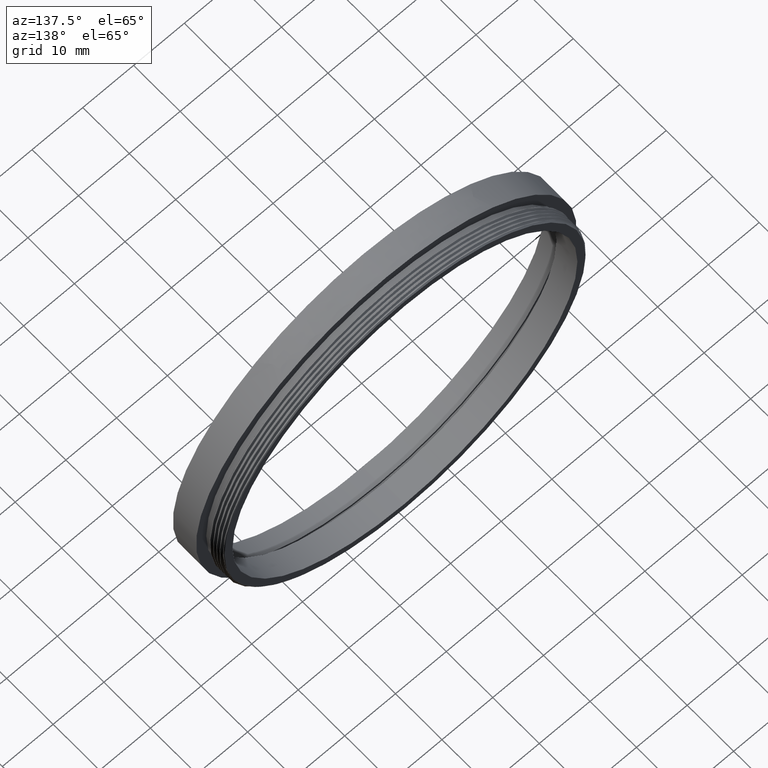
[diagram: clean part render]
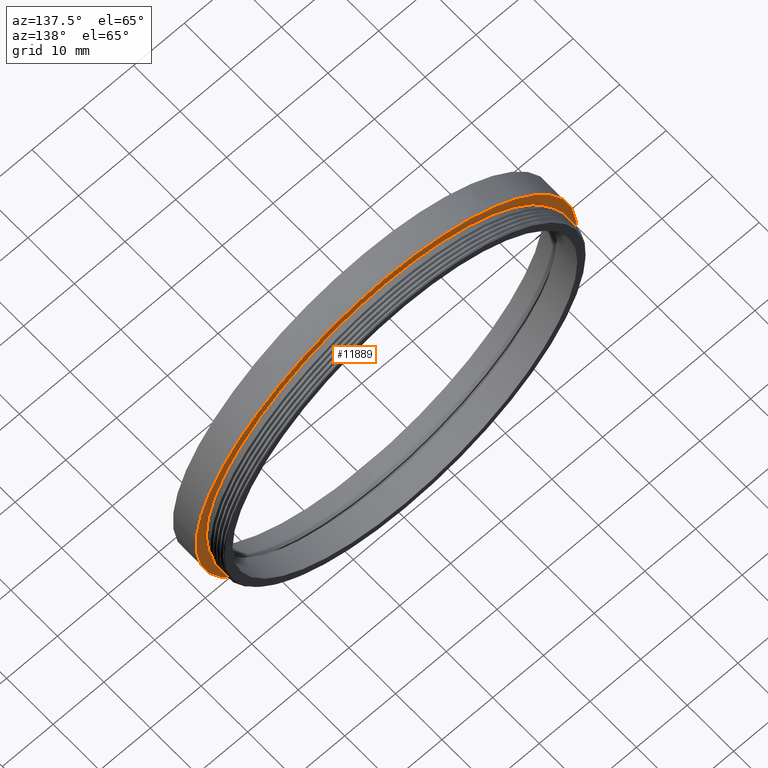
[diagram: same view with one face highlighted and labeled with its STEP entity id]
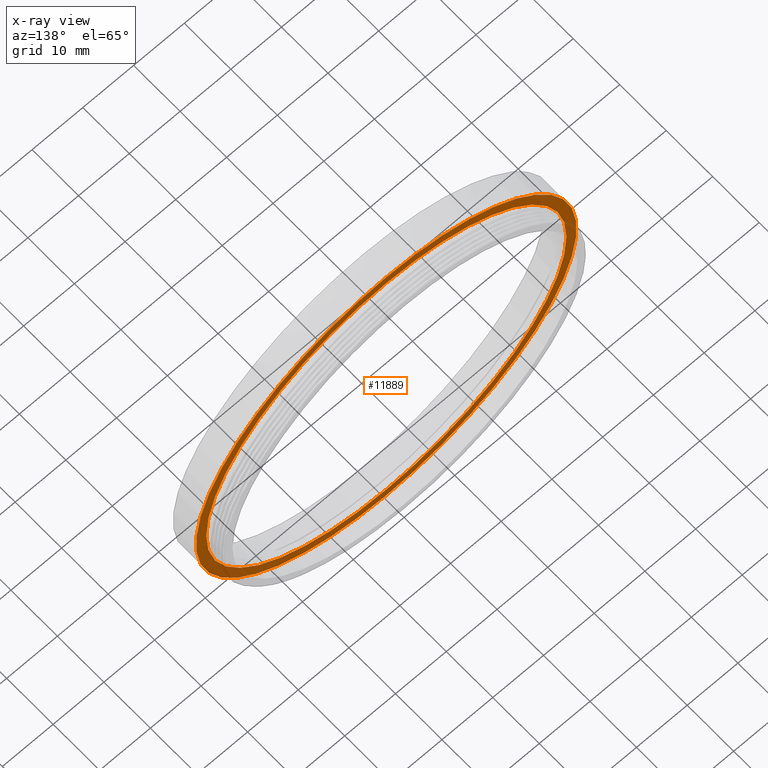
[diagram: x-ray of the same camera — body ghosted, the highlighted face saturated]
A machine part, auxiliary view. The second image highlights one B-rep face of the part: STEP entity #11889.
The next image is the same camera in x-ray: the body ghosted, the highlighted face saturated — about 6% of this face is hidden behind the body in this view.
In plain terms, the highlighted planar face has unit normal (0, -1, -0).
Its self-contained STEP definition (entity closure, byte-faithful):
#333 = ORIENTED_EDGE ( 'NONE', *, *, #10567, .F. ) ;
#792 = DIRECTION ( 'NONE',  ( -0.0000000000000000000, -1.000000000000000000, -0.0000000000000000000 ) ) ;
#1005 = CARTESIAN_POINT ( 'NONE',  ( 4.592425496802585411E-15, 6.201941862066847833, 37.50000000000008527 ) ) ;
#1557 = AXIS2_PLACEMENT_3D ( 'NONE', #1748, #5200, #1590 ) ;
#1590 = DIRECTION ( 'NONE',  ( 0.0000000000000000000, 0.0000000000000000000, -1.000000000000000000 ) ) ;
#1748 = CARTESIAN_POINT ( 'NONE',  ( 0.0000000000000000000, 6.201941862066847833, 0.0000000000000000000 ) ) ;
#1985 = FACE_OUTER_BOUND ( 'NONE', #4784, .T. ) ;
#3150 = VERTEX_POINT ( 'NONE', #1005 ) ;
#4636 = EDGE_CURVE ( 'NONE', #5342, #9330, #14898, .T. ) ;
#4784 = EDGE_LOOP ( 'NONE', ( #11896, #333 ) ) ;
#4814 = ORIENTED_EDGE ( 'NONE', *, *, #4636, .T. ) ;
#5155 = EDGE_CURVE ( 'NONE', #6644, #3150, #13616, .T. ) ;
#5200 = DIRECTION ( 'NONE',  ( -0.0000000000000000000, -1.000000000000000000, -0.0000000000000000000 ) ) ;
#5342 = VERTEX_POINT ( 'NONE', #9519 ) ;
#5613 = CARTESIAN_POINT ( 'NONE',  ( 0.0000000000000000000, 6.201941862066847833, 0.0000000000000000000 ) ) ;
#5752 = DIRECTION ( 'NONE',  ( 0.0000000000000000000, 0.0000000000000000000, -1.000000000000000000 ) ) ;
#5791 = ORIENTED_EDGE ( 'NONE', *, *, #13768, .T. ) ;
#6644 = VERTEX_POINT ( 'NONE', #8362 ) ;
#7342 = CIRCLE ( 'NONE', #11547, 35.50000000000008527 ) ;
#7811 = AXIS2_PLACEMENT_3D ( 'NONE', #13361, #792, #15643 ) ;
#8065 = CARTESIAN_POINT ( 'NONE',  ( 0.0000000000000000000, 6.201941862066847833, 0.0000000000000000000 ) ) ;
#8362 = CARTESIAN_POINT ( 'NONE',  ( 0.0000000000000000000, 6.201941862066847833, -37.50000000000008527 ) ) ;
#8631 = DIRECTION ( 'NONE',  ( 0.0000000000000000000, 0.0000000000000000000, -1.000000000000000000 ) ) ;
#9330 = VERTEX_POINT ( 'NONE', #9594 ) ;
#9519 = CARTESIAN_POINT ( 'NONE',  ( 0.0000000000000000000, 6.201941862066847833, -35.50000000000008527 ) ) ;
#9594 = CARTESIAN_POINT ( 'NONE',  ( 4.347496136973114326E-15, 6.201941862066847833, 35.50000000000008527 ) ) ;
#10567 = EDGE_CURVE ( 'NONE', #3150, #6644, #11255, .T. ) ;
#10601 = CARTESIAN_POINT ( 'NONE',  ( -37.50000000000008527, 6.201941862066847833, 0.0000000000000000000 ) ) ;
#11255 = CIRCLE ( 'NONE', #1557, 37.50000000000008527 ) ;
#11547 = AXIS2_PLACEMENT_3D ( 'NONE', #5613, #15627, #14571 ) ;
#11889 = ADVANCED_FACE ( 'NONE', ( #1985, #15767 ), #15601, .F. ) ;
#11896 = ORIENTED_EDGE ( 'NONE', *, *, #5155, .F. ) ;
#12085 = DIRECTION ( 'NONE',  ( 0.0000000000000000000, -1.000000000000000000, -0.0000000000000000000 ) ) ;
#12331 = EDGE_LOOP ( 'NONE', ( #4814, #5791 ) ) ;
#12632 = AXIS2_PLACEMENT_3D ( 'NONE', #10601, #12085, #5752 ) ;
#13065 = DIRECTION ( 'NONE',  ( -0.0000000000000000000, -1.000000000000000000, -0.0000000000000000000 ) ) ;
#13361 = CARTESIAN_POINT ( 'NONE',  ( 0.0000000000000000000, 6.201941862066847833, 0.0000000000000000000 ) ) ;
#13616 = CIRCLE ( 'NONE', #15693, 37.50000000000008527 ) ;
#13768 = EDGE_CURVE ( 'NONE', #9330, #5342, #7342, .T. ) ;
#14571 = DIRECTION ( 'NONE',  ( 0.0000000000000000000, 0.0000000000000000000, -1.000000000000000000 ) ) ;
#14898 = CIRCLE ( 'NONE', #7811, 35.50000000000008527 ) ;
#15601 = PLANE ( 'NONE',  #12632 ) ;
#15627 = DIRECTION ( 'NONE',  ( -0.0000000000000000000, -1.000000000000000000, -0.0000000000000000000 ) ) ;
#15643 = DIRECTION ( 'NONE',  ( 0.0000000000000000000, 0.0000000000000000000, -1.000000000000000000 ) ) ;
#15693 = AXIS2_PLACEMENT_3D ( 'NONE', #8065, #13065, #8631 ) ;
#15767 = FACE_BOUND ( 'NONE', #12331, .T. ) ;